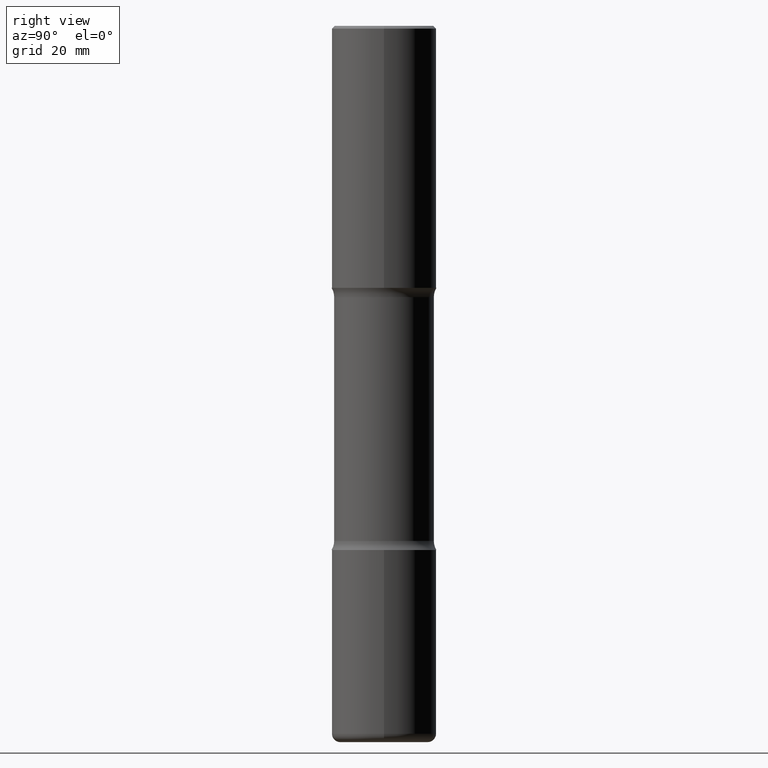
[diagram: clean part render]
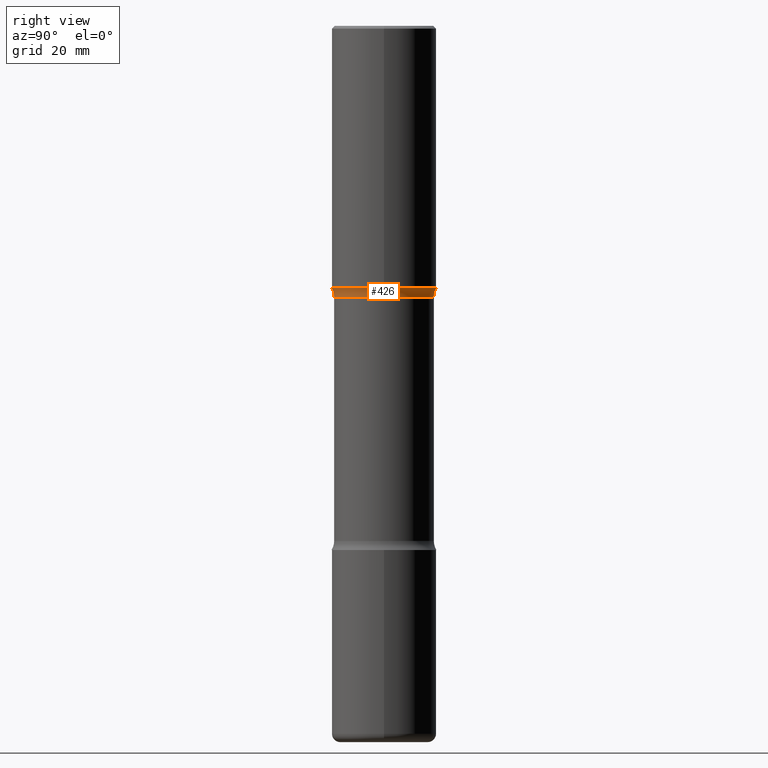
[diagram: same view with one face highlighted and labeled with its STEP entity id]
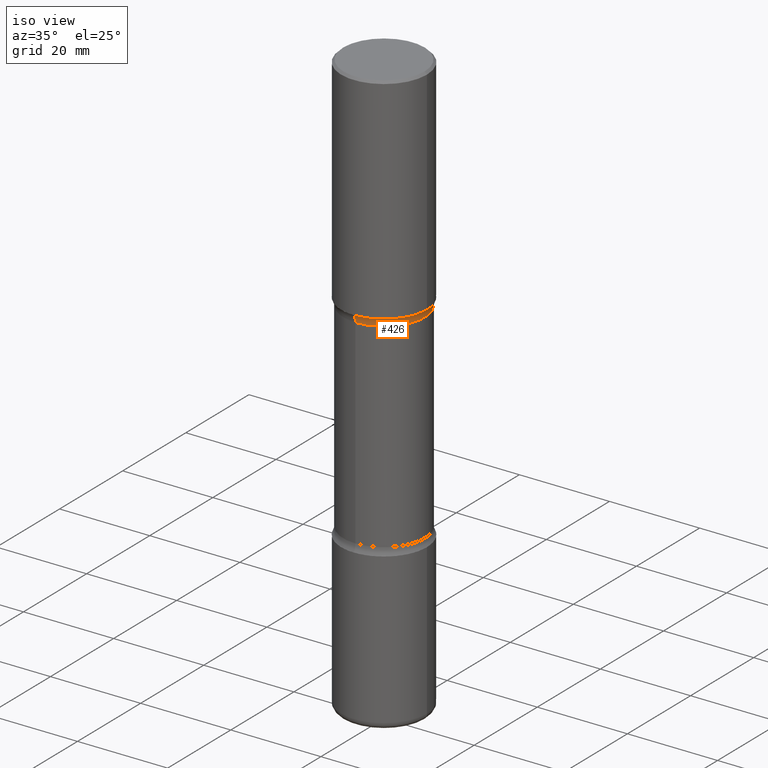
[diagram: same view with one face highlighted and labeled with its STEP entity id]
A machine part, right view. The second image highlights one B-rep face of the part: STEP entity #426.
A second angle (iso view) of the same face is appended — the face is thin or edge-on in the first view.
In plain terms, the highlighted toroidal blend (fillet) surface has major radius 12.2301 mm and minor (blend) radius 3.175 mm.
Its self-contained STEP definition (entity closure, byte-faithful):
#22 = EDGE_CURVE ( 'NONE', #153, #185, #162, .T. ) ;
#35 = CARTESIAN_POINT ( 'NONE',  ( 4.487704276808594217E-29, -6.686224282734187191E-15, -1.875000000000000666 ) ) ;
#36 = DIRECTION ( 'NONE',  ( 6.982962677686265922E-15, 1.000000000000000000, -3.065187089665371661E-15 ) ) ;
#41 = CARTESIAN_POINT ( 'NONE',  ( 4.697601167951830213E-29, -6.843315756459355709E-15, -1.940442723048480866 ) ) ;
#65 = CIRCLE ( 'NONE', #75, 0.3565000000000000946 ) ;
#75 = AXIS2_PLACEMENT_3D ( 'NONE', #397, #526, #36 ) ;
#136 = AXIS2_PLACEMENT_3D ( 'NONE', #35, #256, #552 ) ;
#137 = CIRCLE ( 'NONE', #395, 0.1249999999999999584 ) ;
#140 = DIRECTION ( 'NONE',  ( -1.000000000000000000, 6.982962677686265922E-15, -4.883557194083112340E-29 ) ) ;
#153 = VERTEX_POINT ( 'NONE', #351 ) ;
#154 = DIRECTION ( 'NONE',  ( 1.000000000000000000, -6.860497997771530774E-15, 4.841711302051742582E-29 ) ) ;
#162 = CIRCLE ( 'NONE', #136, 0.3750000000000004996 ) ;
#168 = CARTESIAN_POINT ( 'NONE',  ( -2.572686749164282132E-15, -0.3750000000000070499, -1.874999999999999334 ) ) ;
#173 = CARTESIAN_POINT ( 'NONE',  ( 2.489426194595200956E-15, 0.3564999999999931557, -1.940442723048481977 ) ) ;
#185 = VERTEX_POINT ( 'NONE', #168 ) ;
#221 = ORIENTED_EDGE ( 'NONE', *, *, #423, .F. ) ;
#225 = AXIS2_PLACEMENT_3D ( 'NONE', #510, #154, #288 ) ;
#256 = DIRECTION ( 'NONE',  ( 2.497495331405690228E-29, -3.416976393561393039E-15, -1.000000000000000000 ) ) ;
#258 = FACE_OUTER_BOUND ( 'NONE', #272, .T. ) ;
#272 = EDGE_LOOP ( 'NONE', ( #414, #221, #417, #402 ) ) ;
#284 = EDGE_CURVE ( 'NONE', #366, #185, #367, .T. ) ;
#288 = DIRECTION ( 'NONE',  ( 6.860497997771532351E-15, 1.000000000000000000, 0.000000000000000000 ) ) ;
#349 = DIRECTION ( 'NONE',  ( -6.982962677686269077E-15, -1.000000000000000000, 0.000000000000000000 ) ) ;
#351 = CARTESIAN_POINT ( 'NONE',  ( 2.618611004132398137E-15, 0.3749999999999938383, -1.875000000000001998 ) ) ;
#353 = AXIS2_PLACEMENT_3D ( 'NONE', #41, #443, #478 ) ;
#366 = VERTEX_POINT ( 'NONE', #506 ) ;
#367 = CIRCLE ( 'NONE', #225, 0.1249999999999999584 ) ;
#395 = AXIS2_PLACEMENT_3D ( 'NONE', #522, #140, #349 ) ;
#397 = CARTESIAN_POINT ( 'NONE',  ( 4.651147172096649847E-29, -6.909840522521219359E-15, -1.940442723048480866 ) ) ;
#398 = VERTEX_POINT ( 'NONE', #173 ) ;
#402 = ORIENTED_EDGE ( 'NONE', *, *, #22, .T. ) ;
#414 = ORIENTED_EDGE ( 'NONE', *, *, #284, .F. ) ;
#417 = ORIENTED_EDGE ( 'NONE', *, *, #454, .T. ) ;
#423 = EDGE_CURVE ( 'NONE', #398, #366, #65, .T. ) ;
#426 = ADVANCED_FACE ( 'NONE', ( #258 ), #442, .F. ) ;
#442 = TOROIDAL_SURFACE ( 'NONE', #353, 0.4814999999999999836, 0.1249999999999999861 ) ;
#443 = DIRECTION ( 'NONE',  ( 2.497495331405690228E-29, -3.416976393561393039E-15, -1.000000000000000000 ) ) ;
#454 = EDGE_CURVE ( 'NONE', #398, #153, #137, .T. ) ;
#478 = DIRECTION ( 'NONE',  ( 6.982962677686265922E-15, 1.000000000000000000, -3.416976393561393039E-15 ) ) ;
#506 = CARTESIAN_POINT ( 'NONE',  ( -2.509227142684893291E-15, -0.3565000000000069780, -1.940442723048479756 ) ) ;
#510 = CARTESIAN_POINT ( 'NONE',  ( -3.303329785926944712E-15, -0.4815000000000068114, -1.940442723048479312 ) ) ;
#522 = CARTESIAN_POINT ( 'NONE',  ( 3.362296529305983901E-15, 0.4814999999999931557, -1.940442723048482421 ) ) ;
#526 = DIRECTION ( 'NONE',  ( 2.497495331405690228E-29, -3.416976393561393039E-15, -1.000000000000000000 ) ) ;
#552 = DIRECTION ( 'NONE',  ( 6.982962677686266711E-15, 1.000000000000000000, -3.642463991552346225E-15 ) ) ;